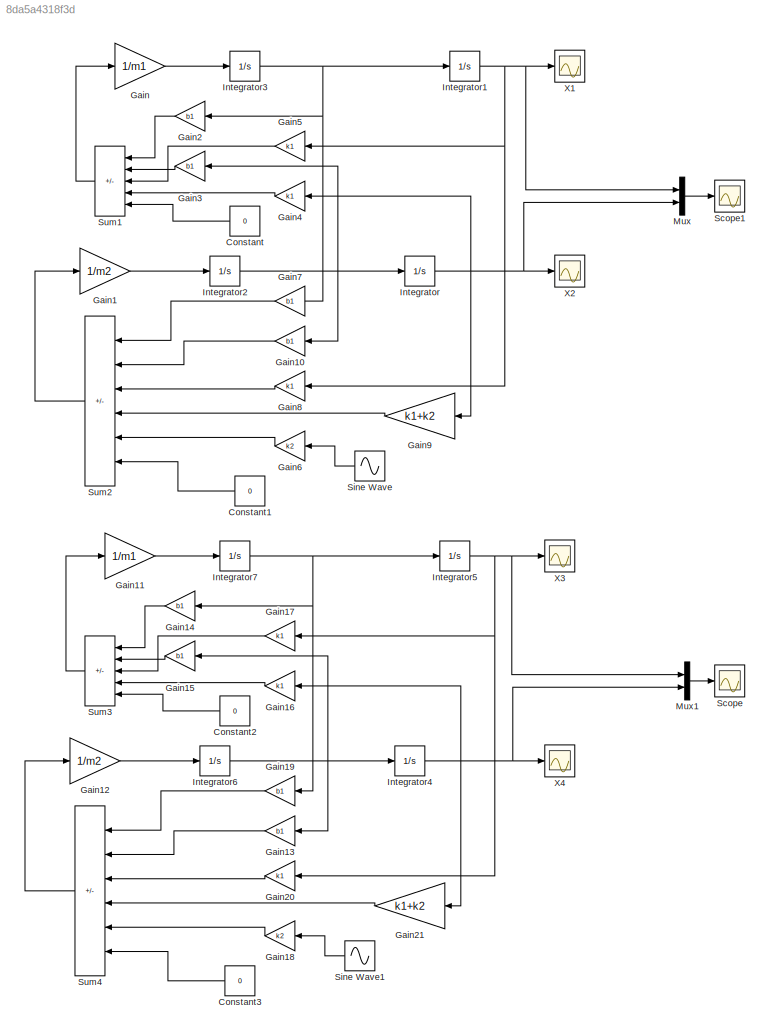
MODEL slx_8da5a4318f3d
KIND model
CONFIG AbsTol = auto
CONFIG EnableMultiTasking = off
CONFIG FixedStep = auto
CONFIG MaxStep = auto
CONFIG MinStep = auto
CONFIG RelTol = 1e-3
CONFIG SampleTimeConstraint = Unconstrained
CONFIG SolverName = VariableStepAuto
CONFIG StartTime = 0.0
CONFIG StopTime = 10.0
BLOCK [Constant] Constant
  NameLocation = top
  Value = 0
BLOCK [Constant] Constant1
  NameLocation = top
  Value = 0
BLOCK [Constant] Constant2
  NameLocation = top
  Value = 0
BLOCK [Constant] Constant3
  NameLocation = top
  Value = 0
BLOCK [Gain] Gain
  Gain = 1/m1
BLOCK [Gain] Gain1
  Gain = 1/m2
BLOCK [Gain] Gain10
  Gain = b1
  NameLocation = top
BLOCK [Gain] Gain11
  Gain = 1/m1
BLOCK [Gain] Gain12
  Gain = 1/m2
BLOCK [Gain] Gain13
  Gain = b1
  NameLocation = top
BLOCK [Gain] Gain14
  Gain = b1
  NameLocation = top
BLOCK [Gain] Gain15
  Gain = b1
  NameLocation = top
BLOCK [Gain] Gain16
  Gain = k1
  NameLocation = top
BLOCK [Gain] Gain17
  Gain = k1
  NameLocation = top
BLOCK [Gain] Gain18
  Gain = k2
  NameLocation = top
BLOCK [Gain] Gain19
  Gain = b1
  NameLocation = top
BLOCK [Gain] Gain2
  Gain = b1
  NameLocation = top
BLOCK [Gain] Gain20
  Gain = k1
  NameLocation = top
BLOCK [Gain] Gain21
  Gain = k1+k2
  NameLocation = top
BLOCK [Gain] Gain3
  Gain = b1
  NameLocation = top
BLOCK [Gain] Gain4
  Gain = k1
  NameLocation = top
BLOCK [Gain] Gain5
  Gain = k1
  NameLocation = top
BLOCK [Gain] Gain6
  Gain = k2
  NameLocation = top
BLOCK [Gain] Gain7
  Gain = b1
  NameLocation = top
BLOCK [Gain] Gain8
  Gain = k1
  NameLocation = top
BLOCK [Gain] Gain9
  Gain = k1+k2
  NameLocation = top
BLOCK [Integrator] Integrator
BLOCK [Integrator] Integrator1
BLOCK [Integrator] Integrator2
BLOCK [Integrator] Integrator3
BLOCK [Integrator] Integrator4
BLOCK [Integrator] Integrator5
BLOCK [Integrator] Integrator6
BLOCK [Integrator] Integrator7
BLOCK [Mux] Mux
  DisplayOption = bar
  Inputs = 2
BLOCK [Mux] Mux1
  DisplayOption = bar
  Inputs = 2
BLOCK [Scope] Scope
  Floating = off
  NumInputPorts = 1
  ScopeSpecificationString = Simulink.scopes.TimeScopeBlockCfg('CurrentConfiguration', extmgr.ConfigurationSet(extmgr.Configuration('Core','General UI',true),extmgr.Configuration('Core','Source UI',true),extmgr.Configuration('Sources','WiredSimulink',true,'DataLoggingVariableName','ScopeData3'),extmgr.Configuration('Visuals','Time Domain',true,'SerializedDisplays',{struct('MinYLimReal','-0.0081','MaxYLimReal','0.01315','YLabe...<+1471ch>
BLOCK [Scope] Scope1
  Floating = off
  NumInputPorts = 1
  ScopeSpecificationString = Simulink.scopes.TimeScopeBlockCfg('CurrentConfiguration', extmgr.ConfigurationSet(extmgr.Configuration('Core','General UI',true),extmgr.Configuration('Core','Source UI',true),extmgr.Configuration('Sources','WiredSimulink',true,'DataLoggingVariableName','ScopeData4'),extmgr.Configuration('Visuals','Time Domain',true,'SerializedDisplays',{struct('MinYLimReal','-0.07024','MaxYLimReal','0.08057','YLab...<+1505ch>
BLOCK [Sin] Sine Wave
  Amplitude = 0.05
  Frequency = 0.5*pi
  NameLocation = top
  SampleTime = 0
BLOCK [Sin] Sine Wave1
  Amplitude = 0.05
  Frequency = 20*pi
  NameLocation = top
  SampleTime = 0
BLOCK [Sum] Sum1
  IconShape = rectangular
  Inputs = -+-++
  NameLocation = top
BLOCK [Sum] Sum2
  IconShape = rectangular
  Inputs = +-+-+-
  NameLocation = top
BLOCK [Sum] Sum3
  IconShape = rectangular
  Inputs = -+-++
  NameLocation = top
BLOCK [Sum] Sum4
  IconShape = rectangular
  Inputs = +-+-+-
  NameLocation = top
BLOCK [Scope] X1
  Floating = off
  NumInputPorts = 1
  ScopeSpecificationString = Simulink.scopes.TimeScopeBlockCfg('CurrentConfiguration', extmgr.ConfigurationSet(extmgr.Configuration('Core','General UI',true),extmgr.Configuration('Core','Source UI',true),extmgr.Configuration('Sources','WiredSimulink',true,'DataLoggingVariableName','ScopeData1'),extmgr.Configuration('Visuals','Time Domain',true,'SerializedDisplays',{struct('MinYLimReal','-0.07016','MaxYLimReal','0.08038','YLab...<+1641ch>
BLOCK [Scope] X2
  Floating = off
  NumInputPorts = 1
  ScopeSpecificationString = Simulink.scopes.TimeScopeBlockCfg('CurrentConfiguration', extmgr.ConfigurationSet(extmgr.Configuration('Core','General UI',true,'FigureColor',[0 0 0]),extmgr.Configuration('Core','Source UI',true),extmgr.Configuration('Sources','WiredSimulink',true),extmgr.Configuration('Visuals','Time Domain',true,'SerializedDisplays',{struct('MinYLimReal','-0.06637','MaxYLimReal','0.07082','YLabelReal','','MinYL...<+1593ch>
BLOCK [Scope] X3
  Floating = off
  NumInputPorts = 1
  ScopeSpecificationString = Simulink.scopes.TimeScopeBlockCfg('CurrentConfiguration', extmgr.ConfigurationSet(extmgr.Configuration('Core','General UI',true),extmgr.Configuration('Core','Source UI',true),extmgr.Configuration('Sources','WiredSimulink',true,'DataLoggingVariableName','ScopeData1'),extmgr.Configuration('Visuals','Time Domain',true,'SerializedDisplays',{struct('MinYLimReal','-0.07016','MaxYLimReal','0.08038','YLab...<+1641ch>
BLOCK [Scope] X4
  Floating = off
  NumInputPorts = 1
  ScopeSpecificationString = Simulink.scopes.TimeScopeBlockCfg('CurrentConfiguration', extmgr.ConfigurationSet(extmgr.Configuration('Core','General UI',true,'FigureColor',[0 0 0]),extmgr.Configuration('Core','Source UI',true),extmgr.Configuration('Sources','WiredSimulink',true,'DataLoggingVariableName','ScopeData2'),extmgr.Configuration('Visuals','Time Domain',true,'SerializedDisplays',{struct('MinYLimReal','-0.0081','MaxYLim...<+1592ch>
LINE Constant1:1 -> Sum2:6
LINE Constant2:1 -> Sum3:5
LINE Constant3:1 -> Sum4:6
LINE Constant:1 -> Sum1:5
LINE Gain10:1 -> Sum2:2
LINE Gain11:1 -> Integrator7:1
LINE Gain12:1 -> Integrator6:1
LINE Gain13:1 -> Sum4:2
LINE Gain14:1 -> Sum3:1
LINE Gain15:1 -> Sum3:2
LINE Gain16:1 -> Sum3:4
LINE Gain17:1 -> Sum3:3
LINE Gain18:1 -> Sum4:5
LINE Gain19:1 -> Sum4:1
LINE Gain1:1 -> Integrator2:1
LINE Gain20:1 -> Sum4:3
LINE Gain21:1 -> Sum4:4
LINE Gain2:1 -> Sum1:1
LINE Gain3:1 -> Sum1:2
LINE Gain4:1 -> Sum1:4
LINE Gain5:1 -> Sum1:3
LINE Gain6:1 -> Sum2:5
LINE Gain7:1 -> Sum2:1
LINE Gain8:1 -> Sum2:3
LINE Gain9:1 -> Sum2:4
LINE Gain:1 -> Integrator3:1
NET Integrator1:1 -> Gain5:1, Gain8:1, Mux:1, X1:1
NET Integrator2:1 -> Gain10:1, Gain3:1, Integrator:1
NET Integrator3:1 -> Gain2:1, Gain7:1, Integrator1:1
NET Integrator4:1 -> Gain16:1, Gain21:1, Mux1:2, X4:1
NET Integrator5:1 -> Gain17:1, Gain20:1, Mux1:1, X3:1
NET Integrator6:1 -> Gain13:1, Gain15:1, Integrator4:1
NET Integrator7:1 -> Gain14:1, Gain19:1, Integrator5:1
NET Integrator:1 -> Gain4:1, Gain9:1, Mux:2, X2:1
LINE Mux1:1 -> Scope:1
LINE Mux:1 -> Scope1:1
LINE Sine Wave1:1 -> Gain18:1
LINE Sine Wave:1 -> Gain6:1
LINE Sum1:1 -> Gain:1
LINE Sum2:1 -> Gain1:1
LINE Sum3:1 -> Gain11:1
LINE Sum4:1 -> Gain12:1
note: NET lines group one-source signal fan-out (src -> all destinations, sorted); 1:1 wires keep LINE
